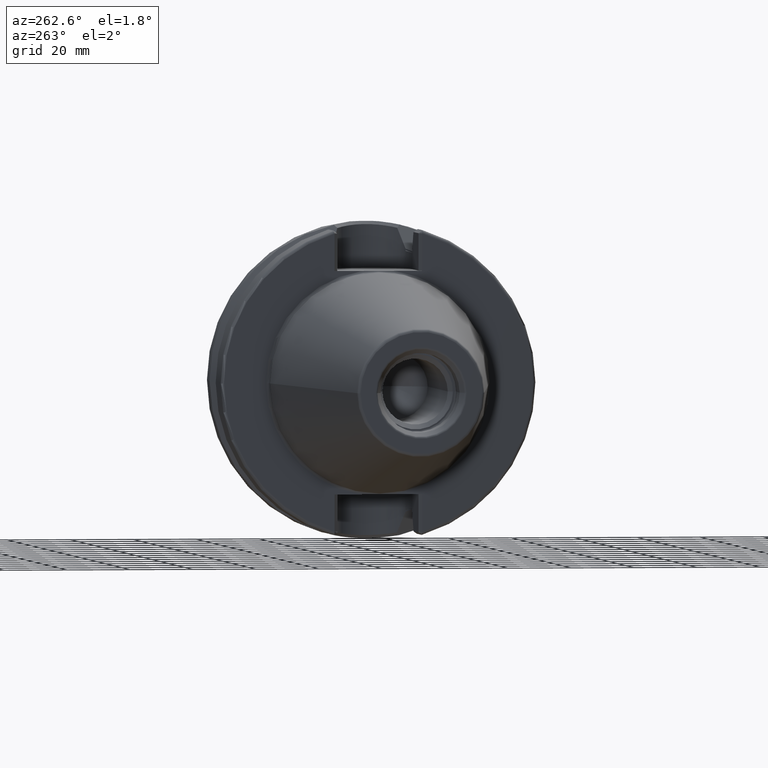
[diagram: clean part render]
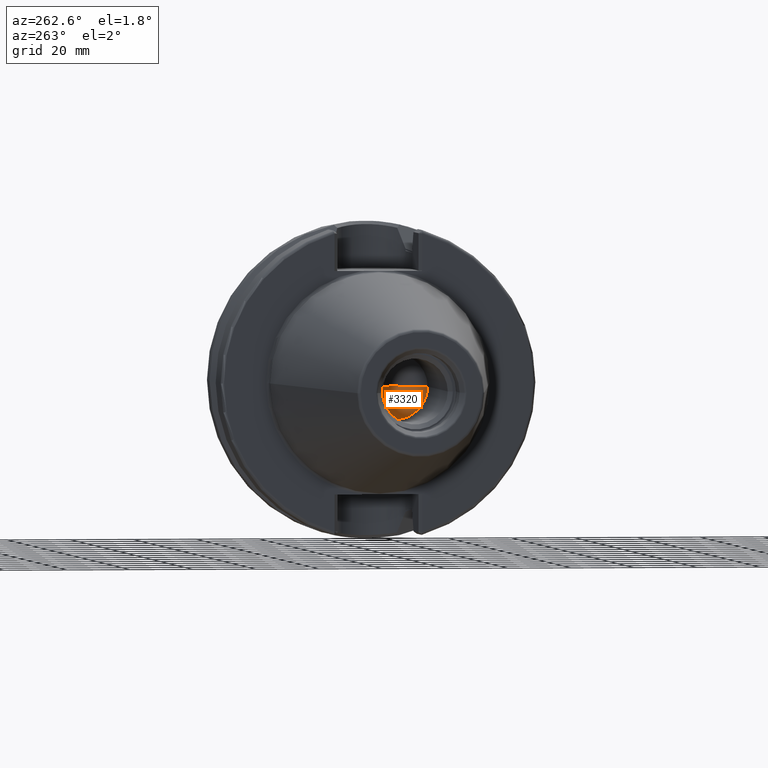
[diagram: same view with one face highlighted and labeled with its STEP entity id]
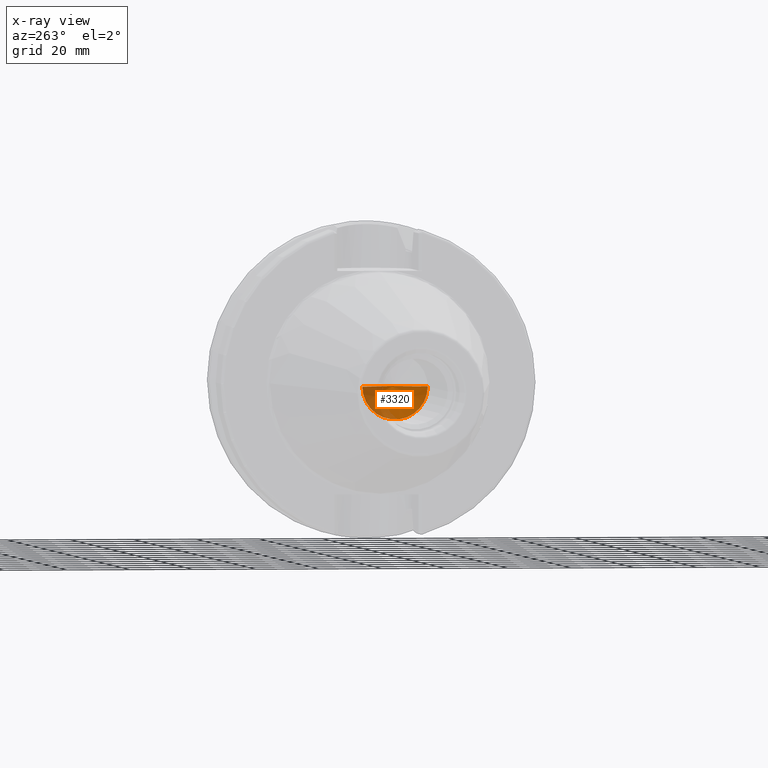
[diagram: x-ray of the same camera — body ghosted, the highlighted face saturated]
A machine part, auxiliary view. The second image highlights one B-rep face of the part: STEP entity #3320.
The next image is the same camera in x-ray: the body ghosted, the highlighted face saturated — about 33% of this face is hidden behind the body in this view.
In plain terms, the highlighted conical surface has half-angle 59 deg.
Its self-contained STEP definition (entity closure, byte-faithful):
#1282=CARTESIAN_POINT('',(-3.78E1,0.E0,0.E0));
#1283=DIRECTION('',(-1.E0,0.E0,0.E0));
#1284=DIRECTION('',(0.E0,1.E0,0.E0));
#1285=AXIS2_PLACEMENT_3D('',#1282,#1283,#1284);
#1296=DIRECTION('',(-5.150380749101E-1,8.571673007021E-1,0.E0));
#1297=VECTOR('',#1296,1.210382149611E1);
#1298=CARTESIAN_POINT('',(-3.156607107759E1,0.E0,0.E0));
#1299=LINE('',#1298,#1297);
#1300=DIRECTION('',(-5.150380749101E-1,-8.571673007021E-1,0.E0));
#1301=VECTOR('',#1300,1.210382149611E1);
#1302=CARTESIAN_POINT('',(-3.156607107759E1,0.E0,0.E0));
#1303=LINE('',#1302,#1301);
#1388=CARTESIAN_POINT('',(-3.156607107759E1,0.E0,0.E0));
#1389=CARTESIAN_POINT('',(-3.78E1,1.0375E1,0.E0));
#1390=VERTEX_POINT('',#1388);
#1391=VERTEX_POINT('',#1389);
#1412=CARTESIAN_POINT('',(-3.78E1,-1.0375E1,0.E0));
#1413=VERTEX_POINT('',#1412);
#3310=CARTESIAN_POINT('',(-3.468303553879E1,0.E0,0.E0));
#3311=DIRECTION('',(-1.E0,0.E0,0.E0));
#3312=DIRECTION('',(0.E0,1.E0,0.E0));
#3313=AXIS2_PLACEMENT_3D('',#3310,#3311,#3312);
#3314=CONICAL_SURFACE('',#3313,5.1875E0,5.9E1);
#3315=ORIENTED_EDGE('',*,*,#3302,.F.);
#3316=ORIENTED_EDGE('',*,*,#3305,.T.);
#3317=ORIENTED_EDGE('',*,*,#3276,.F.);
#3318=EDGE_LOOP('',(#3315,#3316,#3317));
#3319=FACE_OUTER_BOUND('',#3318,.F.);
#3320=ADVANCED_FACE('',(#3319),#3314,.F.);
#1286=CIRCLE('',#1285,1.0375E1);
#3276=EDGE_CURVE('',#1391,#1413,#1286,.T.);
#3302=EDGE_CURVE('',#1390,#1391,#1299,.T.);
#3305=EDGE_CURVE('',#1390,#1413,#1303,.T.);